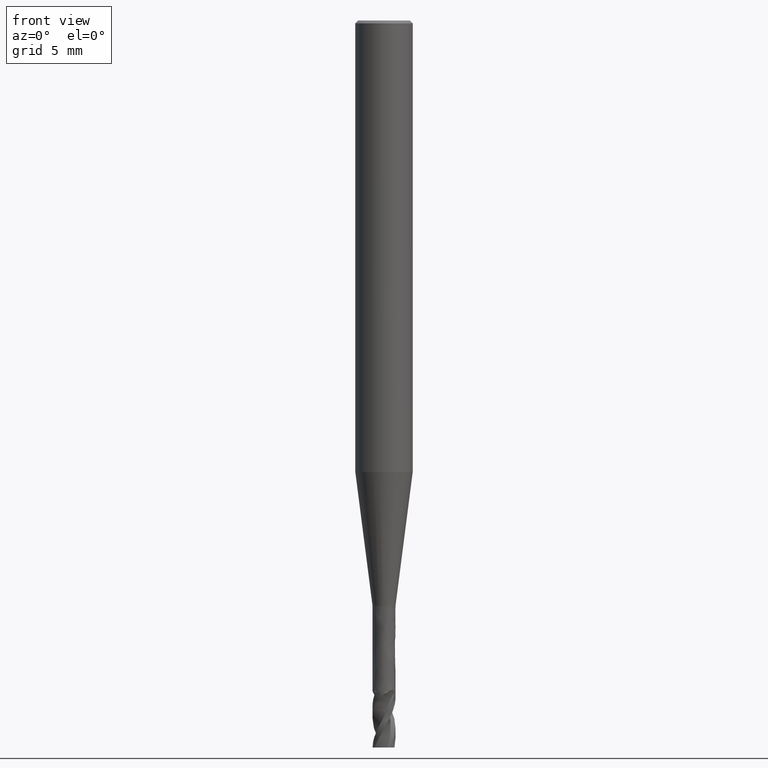
[diagram: clean part render]
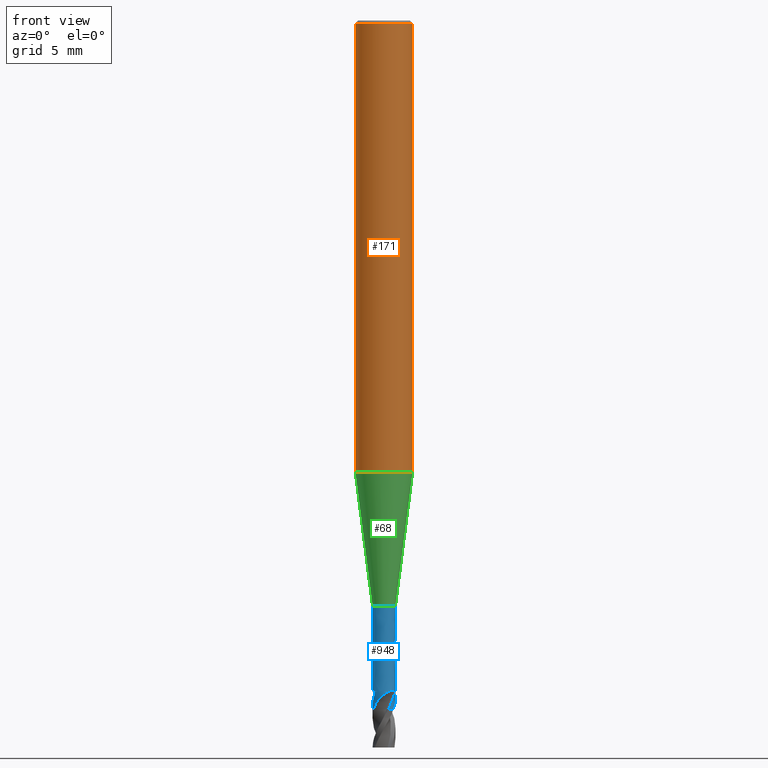
[diagram: same view with three faces highlighted in distinct colors, each labeled with its STEP entity id]
A machine part, front view with three faces highlighted in distinct colors.
Their STEP definitions:

[orange] entity #171 — the highlighted face is a freeform B-spline surface patch.
#73 = VERTEX_POINT('', #74);
#74 = CARTESIAN_POINT('', (-1.5, 1.53693173292993E-15, -23.6));
#82 = EDGE_CURVE('', #73, #73, #83, .T.);
#83 = CIRCLE('', #84, 1.5);
#84 = AXIS2_PLACEMENT_3D('', #85, #86, #87);
#85 = CARTESIAN_POINT('', (8.84858271770496E-32, 1.44508322299388E-15, -23.6));
#86 = DIRECTION('', (3.74939945665464E-33, 6.12323399573677E-17, -1.));
#87 = DIRECTION('', (-1., 6.12323399573677E-17, 0.));
#120 = VERTEX_POINT('', #121);
#121 = CARTESIAN_POINT('', (-1.5, 1.01033360929657E-16, -0.149999999999999));
#137 = EDGE_CURVE('', #120, #120, #138, .T.);
#138 = CIRCLE('', #139, 1.5);
#139 = AXIS2_PLACEMENT_3D('', #140, #141, #142);
#140 = CARTESIAN_POINT('', (5.62409918498176E-34, 9.18485099360502E-18, -0.149999999999999));
#141 = DIRECTION('', (3.74939945665464E-33, 6.12323399573677E-17, -1.));
#142 = DIRECTION('', (-1., 6.12323399573677E-17, 0.));
#171 = ADVANCED_FACE('', (#172), #183, .T.);
#172 = FACE_OUTER_BOUND('', #173, .T.);
#173 = EDGE_LOOP('', (#174, #180, #181, #182));
#174 = ORIENTED_EDGE('', *, *, #175, .T.);
#175 = EDGE_CURVE('', #73, #120, #176, .T.);
#176 = LINE('', #177, #178);
#177 = CARTESIAN_POINT('', (-1.5, 1.53693173292993E-15, -23.6));
#178 = VECTOR('', #179, 23.45);
#179 = DIRECTION('', (0., -1.43589837200027E-15, 23.45));
#180 = ORIENTED_EDGE('', *, *, #137, .T.);
#181 = ORIENTED_EDGE('', *, *, #175, .F.);
#182 = ORIENTED_EDGE('', *, *, #82, .F.);
#183 = (
   BOUNDED_SURFACE ()
   B_SPLINE_SURFACE (1, 2, ((#184, #185, #186, #187, #188, #189, #190, #191, #192), (#193, #194, #195, #196, #197, #198, #199, #200, #201)), .UNSPECIFIED., .F., .T., .U.)
   B_SPLINE_SURFACE_WITH_KNOTS ((2, 2), (3, 2, 2, 2, 3), (0., 1.), (0., 2.35619449019235, 4.71238898038469, 7.06858347057704, 9.42477796076938), .UNSPECIFIED.)
   GEOMETRIC_REPRESENTATION_ITEM ()
   RATIONAL_B_SPLINE_SURFACE (((1., 0.707106781186548, 1., 0.707106781186548, 1., 0.707106781186548, 1., 0.707106781186548, 1.), (1., 0.707106781186548, 1., 0.707106781186548, 1., 0.707106781186548, 1., 0.707106781186548, 1.)))
   REPRESENTATION_ITEM ('')
   SURFACE ()
);
#184 = CARTESIAN_POINT('', (-1.5, 1.53693173292993E-15, -23.6));
#185 = CARTESIAN_POINT('', (-1.5, 1.5, -23.6));
#186 = CARTESIAN_POINT('', (8.62816615085482E-32, 1.5, -23.6));
#187 = CARTESIAN_POINT('', (1.5, 1.5, -23.6));
#188 = CARTESIAN_POINT('', (1.5, 1.53693173292993E-15, -23.6));
#189 = CARTESIAN_POINT('', (1.5, -1.5, -23.6));
#190 = CARTESIAN_POINT('', (1.83697019872103E-16, -1.5, -23.6));
#191 = CARTESIAN_POINT('', (-1.5, -1.5, -23.6));
#192 = CARTESIAN_POINT('', (-1.5, 1.53693173292993E-15, -23.6));
#193 = CARTESIAN_POINT('', (-1.5, 1.01033360929657E-16, -0.149999999999999));
#194 = CARTESIAN_POINT('', (-1.5, 1.5, -0.149999999999995));
#195 = CARTESIAN_POINT('', (0., 1.5, -0.149999999999998));
#196 = CARTESIAN_POINT('', (1.5, 1.5, -0.149999999999995));
#197 = CARTESIAN_POINT('', (1.5, 1.01033360929656E-16, -0.149999999999999));
#198 = CARTESIAN_POINT('', (1.5, -1.5, -0.149999999999995));
#199 = CARTESIAN_POINT('', (1.83697019872103E-16, -1.5, -0.149999999999999));
#200 = CARTESIAN_POINT('', (-1.5, -1.5, -0.149999999999995));
#201 = CARTESIAN_POINT('', (-1.5, 1.01033360929657E-16, -0.149999999999999));

[blue] entity #948 — the highlighted face is a freeform B-spline surface patch.
#75 = VERTEX_POINT('', #76);
#76 = CARTESIAN_POINT('', (-0.6, 1.91044900666987E-15, -30.6));
#90 = EDGE_CURVE('', #75, #75, #91, .T.);
#91 = CIRCLE('', #92, 0.6);
#92 = AXIS2_PLACEMENT_3D('', #93, #94, #95);
#93 = CARTESIAN_POINT('', (1.14731623373632E-31, 1.87370960269545E-15, -30.6));
#94 = DIRECTION('', (3.74939945665464E-33, 6.12323399573677E-17, -1.));
#95 = DIRECTION('', (-1., 6.12323399573677E-17, 0.));
#207 = VERTEX_POINT('', #208);
#208 = CARTESIAN_POINT('', (0.490328690888254, -0.345800196618083, -36.));
#217 = VERTEX_POINT('', #218);
#218 = CARTESIAN_POINT('', (-0.0958757403506505, 0.592290336247534, -35.1336537629521));
#232 = EDGE_CURVE('', #233, #217, #235, .T.);
#233 = VERTEX_POINT('', #234);
#234 = CARTESIAN_POINT('', (0.124998551689292, 0.586835038213962, -35.));
#235 = B_SPLINE_CURVE_WITH_KNOTS('', 3, (#236, #237, #238, #239, #240, #241, #242, #243, #244, #245, #246, #247, #248, #249, #250, #251, #252, #253, #254, #255, #256, #257, #258, #259, #260, #261, #262, #263), .UNSPECIFIED., .F., .U., (4, 3, 3, 3, 3, 3, 3, 3, 3, 4), (0., 0.0388040698705433, 0.0775235768632878, 0.116156968144371, 0.127648843674734, 0.139156920262134, 0.178030401520452, 0.216793321110254, 0.25551003984678, 0.274551173210411), .UNSPECIFIED.);
#236 = CARTESIAN_POINT('', (0.124998551696068, 0.586835038212518, -35.));
#237 = CARTESIAN_POINT('', (0.112347720326072, 0.589529723253509, -35.0000366395628));
#238 = CARTESIAN_POINT('', (0.0995771799417001, 0.591818491646167, -35.0007884423705));
#239 = CARTESIAN_POINT('', (0.0868772630604819, 0.593676967014152, -35.0023898120331));
#240 = CARTESIAN_POINT('', (0.0742050221813653, 0.595531392342387, -35.0039876919477));
#241 = CARTESIAN_POINT('', (0.061534299047866, 0.596965999856449, -35.0064439285647));
#242 = CARTESIAN_POINT('', (0.0491312157792495, 0.597985053020605, -35.0098648726593));
#243 = CARTESIAN_POINT('', (0.0367557180979874, 0.599001839717668, -35.0132782082625));
#244 = CARTESIAN_POINT('', (0.0245641741152698, 0.599610833055968, -35.0176806335336));
#245 = CARTESIAN_POINT('', (0.0128814163229206, 0.599861708324109, -35.0230924622404));
#246 = CARTESIAN_POINT('', (0.00940626713334392, 0.599936333596691, -35.0247022629808));
#247 = CARTESIAN_POINT('', (0.00597085863881527, 0.59997985005236, -35.0264027346499));
#248 = CARTESIAN_POINT('', (0.00258391178644053, 0.599994436140771, -35.0281921668253));
#249 = CARTESIAN_POINT('', (-0.000807809927878144, 0.60000904279241, -35.0299841217127));
#250 = CARTESIAN_POINT('', (-0.00415347799589589, 0.599994651591358, -35.031866643586));
#251 = CARTESIAN_POINT('', (-0.00744462519594912, 0.599953812852035, -35.0338368654428));
#252 = CARTESIAN_POINT('', (-0.0185618912332396, 0.599815862434722, -35.0404921376635));
#253 = CARTESIAN_POINT('', (-0.0291093601344378, 0.599372412444301, -35.048199731836));
#254 = CARTESIAN_POINT('', (-0.0388174758852486, 0.598743019638559, -35.0567590329791));
#255 = CARTESIAN_POINT('', (-0.0484979803843575, 0.59811541691481, -35.0652939902614));
#256 = CARTESIAN_POINT('', (-0.0574226879143911, 0.597300600158555, -35.0747401459383));
#257 = CARTESIAN_POINT('', (-0.0654597229852692, 0.596418497924649, -35.0848188120835));
#258 = CARTESIAN_POINT('', (-0.0734871788530836, 0.595537447053135, -35.0948854656408));
#259 = CARTESIAN_POINT('', (-0.0806881584529217, 0.594584589704476, -35.1056470666327));
#260 = CARTESIAN_POINT('', (-0.0870553718727271, 0.59365087570735, -35.1168336918446));
#261 = CARTESIAN_POINT('', (-0.0901868087257899, 0.593191669108161, -35.1223353466722));
#262 = CARTESIAN_POINT('', (-0.0931249199475637, 0.592735619458448, -35.1279511597501));
#263 = CARTESIAN_POINT('', (-0.0958757403506505, 0.592290336247534, -35.1336537629521));
#265 = EDGE_CURVE('', #233, #266, #268, .T.);
#266 = VERTEX_POINT('', #267);
#267 = CARTESIAN_POINT('', (0.126953968628575, 0.586415117343898, -35.));
#268 = LINE('', #269, #270);
#269 = CARTESIAN_POINT('', (0.124998551689292, 0.586835038213962, -35.));
#270 = VECTOR('', #271, 0.00199999723588525);
#271 = DIRECTION('', (0.00195541693928261, -0.000419920870063928, 0.));
#273 = EDGE_CURVE('', #207, #266, #274, .T.);
#274 = B_SPLINE_CURVE_WITH_KNOTS('', 3, (#275, #276, #277, #278, #279, #280, #281, #282, #283, #284, #285, #286, #287, #288, #289, #290, #291, #292, #293, #294, #295, #296, #297, #298, #299, #300, #301, #302, #303, #304, #305, #306, #307, #308, #309, #310, #311, #312, #313, #314, #315, #316, #317, #318, #319, #320, #321, #322, #323, #324, #325, #326, #327, #328, #329, #330, #331, #332, #333, #334, #335, #336, #337, #338, #339, #340, #341), .UNSPECIFIED., .F., .U., (4, 3, 3, 3, 3, 3, 3, 3, 3, 3, 3, 3, 3, 3, 3, 3, 3, 3, 3, 3, 3, 3, 4), (2.30020898412155, 2.38695202491822, 2.42587327141153, 2.513466982803, 2.6010545954038, 2.68864339678738, 2.77623431383279, 2.86382763602324, 2.92221119329924, 2.98096504113997, 3.06943477713019, 3.15795926934783, 3.24652968413606, 3.33513289036472, 3.42375273847197, 3.51236618166987, 3.60094781893105, 3.65973055362885, 3.71846869689303, 3.7771397508331, 3.83571170612221, 3.86165300058631, 3.89890114130699), .UNSPECIFIED.);
#275 = CARTESIAN_POINT('', (0.490328690888254, -0.345800196618083, -36.));
#276 = CARTESIAN_POINT('', (0.498444851879673, -0.334291961205117, -35.974746477894));
#277 = CARTESIAN_POINT('', (0.506372033665174, -0.322196668996035, -35.9496873710882));
#278 = CARTESIAN_POINT('', (0.514078087811347, -0.309392500930821, -35.9249344022123));
#279 = CARTESIAN_POINT('', (0.51753576268831, -0.303647323256266, -35.9138278466407));
#280 = CARTESIAN_POINT('', (0.520949039636915, -0.297757972764949, -35.9027807546877));
#281 = CARTESIAN_POINT('', (0.524307442580226, -0.291721966356682, -35.8917986822493));
#282 = CARTESIAN_POINT('', (0.531865653189005, -0.278137709660954, -35.8670831201767));
#283 = CARTESIAN_POINT('', (0.539141497841583, -0.263814055921957, -35.8426729426558));
#284 = CARTESIAN_POINT('', (0.545973574469456, -0.248822941026434, -35.8185667859881));
#285 = CARTESIAN_POINT('', (0.552805175407871, -0.233832869900722, -35.7944623077332));
#286 = CARTESIAN_POINT('', (0.559199919135838, -0.218162237479127, -35.7706406437838));
#287 = CARTESIAN_POINT('', (0.565020718903063, -0.20187022368409, -35.7471228324007));
#288 = CARTESIAN_POINT('', (0.570841597673087, -0.185577988765713, -35.7236047018221));
#289 = CARTESIAN_POINT('', (0.576094670993778, -0.168647651972074, -35.7003688219764));
#290 = CARTESIAN_POINT('', (0.58065066420055, -0.151144983917625, -35.6774489277559));
#291 = CARTESIAN_POINT('', (0.585206767454962, -0.133641893095356, -35.6545284799174));
#292 = CARTESIAN_POINT('', (0.589069835816691, -0.115548503903559, -35.6318990594992));
#293 = CARTESIAN_POINT('', (0.592113504967882, -0.0969618339072078, -35.6095890848048));
#294 = CARTESIAN_POINT('', (0.5951572576947, -0.0783746535424457, -35.5872784975045));
#295 = CARTESIAN_POINT('', (0.597385423815004, -0.0592705741160304, -35.5652618007798));
#296 = CARTESIAN_POINT('', (0.598681176158362, -0.0397598957951394, -35.5435785245609));
#297 = CARTESIAN_POINT('', (0.59954483367542, -0.0267554477760934, -35.5291259753551));
#298 = CARTESIAN_POINT('', (0.599995108577792, -0.0135620702767653, -35.5148103313498));
#299 = CARTESIAN_POINT('', (0.599999960339906, -0.000218156161003333, -35.5006442562524));
#300 = CARTESIAN_POINT('', (0.600004842873728, 0.0132103900964821, -35.4863883345579));
#301 = CARTESIAN_POINT('', (0.599558633660723, 0.0268001541813085, -35.4722746433914));
#302 = CARTESIAN_POINT('', (0.598630929928056, 0.0405093783398455, -35.4583192243528));
#303 = CARTESIAN_POINT('', (0.597234022196521, 0.0611523061907051, -35.4373055838279));
#304 = CARTESIAN_POINT('', (0.594741996514665, 0.0820956528786408, -35.4166226713828));
#305 = CARTESIAN_POINT('', (0.59106309148802, 0.103171807587773, -35.3963269508965));
#306 = CARTESIAN_POINT('', (0.587381909491086, 0.124261006878843, -35.3760186688594));
#307 = CARTESIAN_POINT('', (0.582505570991688, 0.145521639557758, -35.356061106206));
#308 = CARTESIAN_POINT('', (0.57635736310326, 0.166769871371163, -35.3365305165708));
#309 = CARTESIAN_POINT('', (0.57020596579794, 0.188029125822496, -35.3169897953341));
#310 = CARTESIAN_POINT('', (0.562768300766994, 0.209319344518514, -35.2978353696723));
#311 = CARTESIAN_POINT('', (0.553987512817619, 0.230429676131677, -35.2791568516033));
#312 = CARTESIAN_POINT('', (0.545203473955558, 0.251547823426671, -35.2604714181832));
#313 = CARTESIAN_POINT('', (0.535054088629139, 0.272536263404244, -35.2422176632189));
#314 = CARTESIAN_POINT('', (0.523503018752897, 0.293163076386855, -35.2245148872531));
#315 = CARTESIAN_POINT('', (0.511949779299382, 0.31379376359628, -35.2068087862672));
#316 = CARTESIAN_POINT('', (0.498961975692826, 0.334118941062348, -35.1896039324944));
#317 = CARTESIAN_POINT('', (0.484532898124182, 0.353875501603859, -35.1730483097391));
#318 = CARTESIAN_POINT('', (0.470104863402436, 0.373630634260059, -35.1564938835246));
#319 = CARTESIAN_POINT('', (0.454187966102664, 0.392881618879135, -35.1405336499033));
#320 = CARTESIAN_POINT('', (0.43680824586954, 0.411337521191998, -35.1253742477409));
#321 = CARTESIAN_POINT('', (0.419434763722445, 0.429786799145847, -35.1102202867278));
#322 = CARTESIAN_POINT('', (0.400529207142576, 0.447514429391241, -35.0958045685062));
#323 = CARTESIAN_POINT('', (0.380165660405124, 0.464191846814157, -35.0824237618902));
#324 = CARTESIAN_POINT('', (0.366652419936961, 0.475258973524914, -35.0735442646303));
#325 = CARTESIAN_POINT('', (0.352462664189037, 0.485892709234798, -35.0650981054081));
#326 = CARTESIAN_POINT('', (0.337637066469528, 0.495985091858469, -35.0572063439819));
#327 = CARTESIAN_POINT('', (0.322822715158679, 0.50606981859794, -35.0493205690916));
#328 = CARTESIAN_POINT('', (0.307333477983282, 0.515640514458802, -35.0419667162588));
#329 = CARTESIAN_POINT('', (0.291235817855269, 0.524577638103431, -35.0353074878384));
#330 = CARTESIAN_POINT('', (0.2751565440956, 0.533504553975878, -35.0286558654319));
#331 = CARTESIAN_POINT('', (0.258415201125441, 0.541828543155526, -35.0226741387604));
#332 = CARTESIAN_POINT('', (0.241123670348406, 0.549417305513501, -35.0175858579573));
#333 = CARTESIAN_POINT('', (0.223861345921998, 0.556993250032668, -35.0125061715414));
#334 = CARTESIAN_POINT('', (0.2059717338831, 0.563868437025403, -35.0082937812864));
#335 = CARTESIAN_POINT('', (0.187652752426766, 0.569900381212946, -35.0052579022104));
#336 = CARTESIAN_POINT('', (0.179539345764902, 0.572571906170371, -35.0039133230055));
#337 = CARTESIAN_POINT('', (0.171328775103828, 0.575083034041252, -35.002798000829));
#338 = CARTESIAN_POINT('', (0.163047634901209, 0.577421396168602, -35.0019453074474));
#339 = CARTESIAN_POINT('', (0.1511570534184, 0.580778963451761, -35.0007209567077));
#340 = CARTESIAN_POINT('', (0.139088849590595, 0.583788017101569, -35.0000350568162));
#341 = CARTESIAN_POINT('', (0.126953968621953, 0.586415117345331, -35.));
#370 = VERTEX_POINT('', #371);
#371 = CARTESIAN_POINT('', (0.370189930607976, 0.472185784703928, -36.));
#377 = EDGE_CURVE('', #217, #370, #378, .T.);
#378 = B_SPLINE_CURVE_WITH_KNOTS('', 3, (#379, #380, #381, #382, #383, #384, #385, #386, #387, #388, #389, #390, #391, #392, #393, #394, #395, #396, #397, #398, #399, #400, #401, #402, #403, #404, #405, #406, #407, #408, #409, #410, #411, #412), .UNSPECIFIED., .F., .U., (4, 3, 3, 3, 3, 3, 3, 3, 3, 3, 3, 4), (0., 0.087427344844775, 0.174841659366953, 0.213749101737953, 0.301473697095007, 0.389190618277306, 0.476900304847303, 0.608570303749704, 0.740237875023084, 0.871899451927085, 0.930319938604545, 0.997824811766966), .UNSPECIFIED.);
#379 = CARTESIAN_POINT('', (-0.0958757403506505, 0.592290336247534, -35.1336537629521));
#380 = CARTESIAN_POINT('', (-0.0816006682633882, 0.594601083226113, -35.1589552462515));
#381 = CARTESIAN_POINT('', (-0.067236985260783, 0.596396178409782, -35.1842592302945));
#382 = CARTESIAN_POINT('', (-0.0528289360962906, 0.597669727785294, -35.2095588050559));
#383 = CARTESIAN_POINT('', (-0.0384230343323505, 0.598943087348805, -35.234854609125));
#384 = CARTESIAN_POINT('', (-0.0239707195768895, 0.599695342208929, -35.2601556093619));
#385 = CARTESIAN_POINT('', (-0.00951228575736046, 0.599924592277797, -35.285452452833));
#386 = CARTESIAN_POINT('', (-0.00307694752147548, 0.600026629728891, -35.2967118842534));
#387 = CARTESIAN_POINT('', (0.00336032395722884, 0.600025110841238, -35.3079716253966));
#388 = CARTESIAN_POINT('', (0.00979572413090624, 0.599920031161449, -35.3192309934351));
#389 = CARTESIAN_POINT('', (0.0243056184285934, 0.599683108047824, -35.3446174862232));
#390 = CARTESIAN_POINT('', (0.0388083110241686, 0.598919448030273, -35.3700086335529));
#391 = CARTESIAN_POINT('', (0.0532627467476189, 0.597631223924004, -35.3953951840815));
#392 = CARTESIAN_POINT('', (0.0677159179925582, 0.596343112511979, -35.4207795137868));
#393 = CARTESIAN_POINT('', (0.0821258423215846, 0.594529981652464, -35.4461672781028));
#394 = CARTESIAN_POINT('', (0.0964475923128512, 0.592197485588263, -35.4715516142953));
#395 = CARTESIAN_POINT('', (0.11076816109179, 0.58986518190091, -35.4969338568686));
#396 = CARTESIAN_POINT('', (0.12500639457099, 0.587012712666572, -35.5223202078086));
#397 = CARTESIAN_POINT('', (0.139120403676939, 0.583648450079992, -35.5477023482404));
#398 = CARTESIAN_POINT('', (0.160308389134004, 0.578598010745348, -35.5858060803762));
#399 = CARTESIAN_POINT('', (0.181226036483727, 0.572391146724426, -35.6239252869249));
#400 = CARTESIAN_POINT('', (0.201740835873222, 0.565066929789352, -35.6620281860295));
#401 = CARTESIAN_POINT('', (0.222255257026803, 0.557742847892494, -35.7001303826226));
#402 = CARTESIAN_POINT('', (0.242378993447972, 0.549296568512403, -35.738245627646));
#403 = CARTESIAN_POINT('', (0.261971805338107, 0.539787711242017, -35.7763502781727));
#404 = CARTESIAN_POINT('', (0.281563725235244, 0.530279286877033, -35.8144531939264));
#405 = CARTESIAN_POINT('', (0.300640957593856, 0.519701495844701, -35.8525723372381));
#406 = CARTESIAN_POINT('', (0.319090631712257, 0.50811531048914, -35.8906703093879));
#407 = CARTESIAN_POINT('', (0.327277066710096, 0.502974322486993, -35.9075750292519));
#408 = CARTESIAN_POINT('', (0.335340569077229, 0.497634493218622, -35.9244804227193));
#409 = CARTESIAN_POINT('', (0.343266465446137, 0.49210581555202, -35.9413869575299));
#410 = CARTESIAN_POINT('', (0.352424838809843, 0.485717428431927, -35.9609224587369));
#411 = CARTESIAN_POINT('', (0.361401323577231, 0.479075983291529, -35.9804651938848));
#412 = CARTESIAN_POINT('', (0.370189930607976, 0.472185784703928, -36.));
#442 = VERTEX_POINT('', #443);
#443 = CARTESIAN_POINT('', (0.0543074122689383, 0.597537199655933, -36.));
#452 = VERTEX_POINT('', #453);
#453 = CARTESIAN_POINT('', (-0.465000607431065, -0.379175994874069, -35.1336537629521));
#467 = EDGE_CURVE('', #468, #452, #470, .T.);
#468 = VERTEX_POINT('', #469);
#469 = CARTESIAN_POINT('', (-0.570713326768747, -0.185165597907789, -35.));
#470 = B_SPLINE_CURVE_WITH_KNOTS('', 3, (#471, #472, #473, #474, #475, #476, #477, #478, #479, #480, #481, #482, #483, #484, #485, #486, #487, #488, #489, #490, #491, #492), .UNSPECIFIED., .F., .U., (4, 3, 3, 3, 3, 3, 3, 4), (0., 0.0391433481706143, 0.0781944405581312, 0.117132500966041, 0.155950875094842, 0.194671707764165, 0.233345950460599, 0.274509939951007), .UNSPECIFIED.);
#471 = CARTESIAN_POINT('', (-0.570713326770884, -0.185165597901201, -35.));
#472 = CARTESIAN_POINT('', (-0.566686675443669, -0.197576453917379, -35.000036959916));
#473 = CARTESIAN_POINT('', (-0.562241221924275, -0.20988662347355, -35.0008016909343));
#474 = CARTESIAN_POINT('', (-0.557453233763272, -0.221914154949318, -35.0024321172498));
#475 = CARTESIAN_POINT('', (-0.552676530267938, -0.233913339096947, -35.0040587008624));
#476 = CARTESIAN_POINT('', (-0.547531144385319, -0.24569686488974, -35.006559907783));
#477 = CARTESIAN_POINT('', (-0.542158334440583, -0.257029843396855, -35.0100441009743));
#478 = CARTESIAN_POINT('', (-0.536801075900609, -0.268330019006094, -35.0135182092941));
#479 = CARTESIAN_POINT('', (-0.531180582748919, -0.279258538545026, -35.0179993767583));
#480 = CARTESIAN_POINT('', (-0.525508525314057, -0.289552741002816, -35.0235058072441));
#481 = CARTESIAN_POINT('', (-0.519853902426323, -0.299815301545841, -35.0289953122803));
#482 = CARTESIAN_POINT('', (-0.514105100174438, -0.30952723617929, -35.0355516374083));
#483 = CARTESIAN_POINT('', (-0.508508945943972, -0.318462952154484, -35.043052678155));
#484 = CARTESIAN_POINT('', (-0.502926853535088, -0.327376214773573, -35.0505348705476));
#485 = CARTESIAN_POINT('', (-0.497453333215358, -0.335591126463263, -35.0590174656571));
#486 = CARTESIAN_POINT('', (-0.492301472591189, -0.342985801578644, -35.0682568553137));
#487 = CARTESIAN_POINT('', (-0.487155810827692, -0.350371579217153, -35.077485127882));
#488 = CARTESIAN_POINT('', (-0.48229263626454, -0.356998532919709, -35.0875332511615));
#489 = CARTESIAN_POINT('', (-0.477842809441015, -0.362858442736994, -35.0981185739756));
#490 = CARTESIAN_POINT('', (-0.473106514381911, -0.369095598252277, -35.1093853522417));
#491 = CARTESIAN_POINT('', (-0.46880769695015, -0.374507189456925, -35.121325615578));
#492 = CARTESIAN_POINT('', (-0.465000607431065, -0.379175994874069, -35.1336537629521));
#494 = EDGE_CURVE('', #468, #495, #497, .T.);
#495 = VERTEX_POINT('', #496);
#496 = CARTESIAN_POINT('', (-0.571327373097333, -0.183262196728348, -35.));
#497 = LINE('', #498, #499);
#498 = CARTESIAN_POINT('', (-0.570713326768747, -0.185165597907789, -35.));
#499 = VECTOR('', #500, 0.00199999723588494);
#500 = DIRECTION('', (-0.000614046328586526, 0.00190340117944085, 0.));
#502 = EDGE_CURVE('', #503, #495, #505, .T.);
#503 = VERTEX_POINT('', #504);
#504 = CARTESIAN_POINT('', (-0.6, 2.1822610249017E-15, -35.0390271288191));
#505 = B_SPLINE_CURVE_WITH_KNOTS('', 3, (#506, #507, #508, #509, #510, #511, #512, #513, #514, #515, #516, #517, #518), .UNSPECIFIED., .F., .U., (4, 3, 3, 3, 4), (0., 0.0593283939609799, 0.11860776627626, 0.157865703053861, 0.19116284222664), .UNSPECIFIED.);
#506 = CARTESIAN_POINT('', (-0.6, 2.15450544928607E-15, -35.0390271288191));
#507 = CARTESIAN_POINT('', (-0.6, -0.0185054070791206, -35.0320525120673));
#508 = CARTESIAN_POINT('', (-0.599141104598168, -0.0373009885721476, -35.0257327203925));
#509 = CARTESIAN_POINT('', (-0.597359481016837, -0.0562285553726417, -35.0202858495086));
#510 = CARTESIAN_POINT('', (-0.595579329548843, -0.0751404827733189, -35.014843479245));
#511 = CARTESIAN_POINT('', (-0.592867890149742, -0.0942669198222212, -35.010248346099));
#512 = CARTESIAN_POINT('', (-0.589191308461986, -0.113373727260123, -35.0068042224125));
#513 = CARTESIAN_POINT('', (-0.58675648154297, -0.126027266073414, -35.0045233414811));
#514 = CARTESIAN_POINT('', (-0.583891643486849, -0.138709866109588, -35.0027417117006));
#515 = CARTESIAN_POINT('', (-0.580604485673354, -0.151322276007134, -35.0015735702135));
#516 = CARTESIAN_POINT('', (-0.577816439225093, -0.162019658552779, -35.0005827955356));
#517 = CARTESIAN_POINT('', (-0.574717418954231, -0.172693590498572, -35.0000313382538));
#518 = CARTESIAN_POINT('', (-0.571327373095271, -0.183262196734776, -35.));
#520 = EDGE_CURVE('', #442, #503, #521, .T.);
#521 = B_SPLINE_CURVE_WITH_KNOTS('', 3, (#522, #523, #524, #525, #526, #527, #528, #529, #530, #531, #532, #533, #534, #535, #536, #537, #538, #539, #540, #541, #542, #543, #544, #545, #546, #547, #548, #549, #550, #551, #552, #553, #554, #555, #556, #557, #558, #559, #560, #561, #562, #563, #564, #565, #566, #567, #568, #569, #570, #571, #572, #573, #574, #575, #576), .UNSPECIFIED., .F., .U., (4, 3, 3, 3, 3, 3, 3, 3, 3, 3, 3, 3, 3, 3, 3, 3, 3, 3, 4), (2.30018021809366, 2.33214528044806, 2.39048568675276, 2.40777910517182, 2.49563187743093, 2.58352085040529, 2.67145684085617, 2.75944306365838, 2.84748241784141, 2.93557320020795, 3.02371011922157, 3.11188322344589, 3.20008334586567, 3.28829401926274, 3.37649883183458, 3.46466915093855, 3.55277436060544, 3.64077035587392, 3.70767059028253), .UNSPECIFIED.);
#522 = CARTESIAN_POINT('', (0.0543074122689383, 0.597537199655933, -36.));
#523 = CARTESIAN_POINT('', (0.0491394325734026, 0.598006893599816, -35.9906940426935));
#524 = CARTESIAN_POINT('', (0.0439161821766765, 0.598414073650817, -35.9814142155992));
#525 = CARTESIAN_POINT('', (0.0386323979047502, 0.598754989818377, -35.9721678721133));
#526 = CARTESIAN_POINT('', (0.0289888027247072, 0.599377206271792, -35.9552920897413));
#527 = CARTESIAN_POINT('', (0.0191388588044773, 0.599779352461476, -35.9385221899753));
#528 = CARTESIAN_POINT('', (0.00906193530922956, 0.599931563870792, -35.9218905768083));
#529 = CARTESIAN_POINT('', (0.00607490684271669, 0.599976682781615, -35.9169605897942));
#530 = CARTESIAN_POINT('', (0.00306789073797061, 0.599999793218224, -35.9120424013062));
#531 = CARTESIAN_POINT('', (4.07112838935212E-5, 0.599999998618828, -35.9071367585098));
#532 = CARTESIAN_POINT('', (-0.0153377466196942, 0.600001042080107, -35.8822154671299));
#533 = CARTESIAN_POINT('', (-0.0312485962518507, 0.599408605169055, -35.8576081551785));
#534 = CARTESIAN_POINT('', (-0.0475419516331205, 0.598113503304278, -35.8333096569903));
#535 = CARTESIAN_POINT('', (-0.0638420208733087, 0.596817867778324, -35.8090011463347));
#536 = CARTESIAN_POINT('', (-0.0805394256632855, 0.594818624201895, -35.7849802786496));
#537 = CARTESIAN_POINT('', (-0.0975094708924197, 0.592023566326783, -35.7612636213105));
#538 = CARTESIAN_POINT('', (-0.114488594492549, 0.589227013195059, -35.7375342764028));
#539 = CARTESIAN_POINT('', (-0.131758714862514, 0.585631137012251, -35.7140884359264));
#540 = CARTESIAN_POINT('', (-0.149198377741831, 0.581153890186763, -35.6909582483587));
#541 = CARTESIAN_POINT('', (-0.166648002813742, 0.576674085789178, -35.6678148479563));
#542 = CARTESIAN_POINT('', (-0.184287753673124, 0.571306096736756, -35.6449650174717));
#543 = CARTESIAN_POINT('', (-0.201970375936608, 0.564984926563557, -35.6224363086249));
#544 = CARTESIAN_POINT('', (-0.219663676032458, 0.558659939287076, -35.5998939955867));
#545 = CARTESIAN_POINT('', (-0.237420812309, 0.551373197656715, -35.5776464505871));
#546 = CARTESIAN_POINT('', (-0.255089167579683, 0.543074135439635, -35.5557336917971));
#547 = CARTESIAN_POINT('', (-0.272767843819046, 0.534770225325854, -35.5338081326704));
#548 = CARTESIAN_POINT('', (-0.290379383870626, 0.525442184750277, -35.5121871937711));
#549 = CARTESIAN_POINT('', (-0.307754479032667, 0.51506036601095, -35.4909140988494));
#550 = CARTESIAN_POINT('', (-0.325138674223245, 0.504673109900149, -35.4696298623617));
#551 = CARTESIAN_POINT('', (-0.342313325020747, 0.493214558703279, -35.44866327696));
#552 = CARTESIAN_POINT('', (-0.359098994367886, 0.480674434772617, -35.4280693300053));
#553 = CARTESIAN_POINT('', (-0.37589155518558, 0.468129162408906, -35.4074669280658));
#554 = CARTESIAN_POINT('', (-0.392321436331595, 0.45448112762819, -35.3872006216634));
#555 = CARTESIAN_POINT('', (-0.408197042643386, 0.439744442122008, -35.3673353719117));
#556 = CARTESIAN_POINT('', (-0.424077513593189, 0.425003240968417, -35.3474640350067));
#557 = CARTESIAN_POINT('', (-0.43943456320142, 0.409143332306254, -35.3279571696663));
#558 = CARTESIAN_POINT('', (-0.454065790802283, 0.392204356965982, -35.3088951474036));
#559 = CARTESIAN_POINT('', (-0.468698768669992, 0.375263355293556, -35.2898308448384));
#560 = CARTESIAN_POINT('', (-0.482636888821692, 0.357206452126708, -35.2711683402486));
#561 = CARTESIAN_POINT('', (-0.495668502893423, 0.338101664058895, -35.2530092290697));
#562 = CARTESIAN_POINT('', (-0.508699251128747, 0.318998145336612, -35.2348513244043));
#563 = CARTESIAN_POINT('', (-0.520856743078705, 0.298797397139031, -35.2171519913209));
#564 = CARTESIAN_POINT('', (-0.5319186134511, 0.277601492546888, -35.200039920103));
#565 = CARTESIAN_POINT('', (-0.542976157956697, 0.25641387684775, -35.1829345407499));
#566 = CARTESIAN_POINT('', (-0.552970554133121, 0.234169981705468, -35.1663633672283));
#567 = CARTESIAN_POINT('', (-0.561670878363997, 0.211011431912627, -35.1504962855151));
#568 = CARTESIAN_POINT('', (-0.570364777834035, 0.187869983567938, -35.1346409208602));
#569 = CARTESIAN_POINT('', (-0.577796474776362, 0.163733149288315, -35.1194316042131));
#570 = CARTESIAN_POINT('', (-0.583727005166585, 0.138790429926743, -35.1051070564727));
#571 = CARTESIAN_POINT('', (-0.589650184126499, 0.113878629328091, -35.0908002653084));
#572 = CARTESIAN_POINT('', (-0.59410025291033, 0.0880534092181124, -35.077311423244));
#573 = CARTESIAN_POINT('', (-0.59683196248973, 0.0615760387704317, -35.064988568525));
#574 = CARTESIAN_POINT('', (-0.59890878440237, 0.0414462330438318, -35.0556199391144));
#575 = CARTESIAN_POINT('', (-0.6, 0.0208671765535125, -35.0468918874019));
#576 = CARTESIAN_POINT('', (-0.6, 2.15450544928607E-15, -35.0390271288191));
#613 = VERTEX_POINT('', #614);
#614 = CARTESIAN_POINT('', (-0.6, 2.23202215885758E-15, -35.851688117939));
#627 = EDGE_CURVE('', #452, #613, #628, .T.);
#628 = B_SPLINE_CURVE_WITH_KNOTS('', 3, (#629, #630, #631, #632, #633, #634, #635, #636, #637, #638, #639, #640, #641, #642, #643, #644, #645, #646, #647, #648, #649, #650, #651, #652, #653, #654, #655, #656), .UNSPECIFIED., .F., .U., (4, 3, 3, 3, 3, 3, 3, 3, 3, 4), (0., 0.087531907772177, 0.175052125147683, 0.262565942611802, 0.350073803021446, 0.437575250567772, 0.568776147493524, 0.656267491587521, 0.787462373663, 0.827007168595617), .UNSPECIFIED.);
#629 = CARTESIAN_POINT('', (-0.465000607431065, -0.379175994874069, -35.1336537629521));
#630 = CARTESIAN_POINT('', (-0.474150238928506, -0.36795538950454, -35.1589855067743));
#631 = CARTESIAN_POINT('', (-0.482896647834603, -0.356399413626223, -35.1843197609447));
#632 = CARTESIAN_POINT('', (-0.491212507541671, -0.344543571170067, -35.2096495944116));
#633 = CARTESIAN_POINT('', (-0.499527256617187, -0.332689312130801, -35.2349760449315));
#634 = CARTESIAN_POINT('', (-0.507412856260359, -0.320533616274935, -35.2603077125579));
#635 = CARTESIAN_POINT('', (-0.514847446215982, -0.308110543676909, -35.2856352024634));
#636 = CARTESIAN_POINT('', (-0.522281492517598, -0.295688379515427, -35.3109608402974));
#637 = CARTESIAN_POINT('', (-0.529267064289605, -0.282994593728781, -35.3362903071068));
#638 = CARTESIAN_POINT('', (-0.535783063858939, -0.270067599837386, -35.361616138132));
#639 = CARTESIAN_POINT('', (-0.542298619885008, -0.25714148588483, -35.386940245231));
#640 = CARTESIAN_POINT('', (-0.54834741364995, -0.243976810997753, -35.4122680908907));
#641 = CARTESIAN_POINT('', (-0.553911528543471, -0.230612268855399, -35.4375915371685));
#642 = CARTESIAN_POINT('', (-0.559475235680384, -0.217248706110572, -35.462913127661));
#643 = CARTESIAN_POINT('', (-0.564555548137928, -0.203682486316451, -35.4882393903911));
#644 = CARTESIAN_POINT('', (-0.569138105751259, -0.189952142872538, -35.5135613260605));
#645 = CARTESIAN_POINT('', (-0.576009256868669, -0.169364673459688, -35.5515293913312));
#646 = CARTESIAN_POINT('', (-0.581763873401892, -0.148397591993306, -35.589511906185));
#647 = CARTESIAN_POINT('', (-0.586364588404626, -0.127187143474266, -35.6274800624477));
#648 = CARTESIAN_POINT('', (-0.589432576115187, -0.113042951679468, -35.6527991349695));
#649 = CARTESIAN_POINT('', (-0.591989277096041, -0.0987836248688929, -35.6781212555379));
#650 = CARTESIAN_POINT('', (-0.594026631094831, -0.0844533098826556, -35.7034395770574));
#651 = CARTESIAN_POINT('', (-0.59708168094445, -0.0629647385937746, -35.741404866544));
#652 = CARTESIAN_POINT('', (-0.598969627913765, -0.0413061987817239, -35.7793860783124));
#653 = CARTESIAN_POINT('', (-0.59967914424062, -0.0196194791794721, -35.8173549867889));
#654 = CARTESIAN_POINT('', (-0.599893006833451, -0.01308266260656, -35.8287995848995));
#655 = CARTESIAN_POINT('', (-0.6, -0.0065417094815849, -35.8402443173864));
#656 = CARTESIAN_POINT('', (-0.6, 2.2609839093901E-15, -35.851688117939));
#686 = VERTEX_POINT('', #687);
#687 = CARTESIAN_POINT('', (-0.544636100524171, -0.251737002479015, -36.));
#696 = VERTEX_POINT('', #697);
#697 = CARTESIAN_POINT('', (0.560876347781715, -0.21311434137346, -35.1336537629521));
#711 = EDGE_CURVE('', #712, #696, #714, .T.);
#712 = VERTEX_POINT('', #713);
#713 = CARTESIAN_POINT('', (0.445714775079455, -0.401669440306167, -35.));
#714 = B_SPLINE_CURVE_WITH_KNOTS('', 3, (#715, #716, #717, #718, #719, #720, #721, #722, #723, #724, #725, #726, #727, #728, #729, #730, #731, #732, #733, #734, #735, #736), .UNSPECIFIED., .F., .U., (4, 3, 3, 3, 3, 3, 3, 4), (0., 0.0389734144798024, 0.0778599133700016, 0.116648218224778, 0.15534281712054, 0.193973456090439, 0.232590356393934, 0.274512340769602), .UNSPECIFIED.);
#715 = CARTESIAN_POINT('', (0.445714775076202, -0.401669440309779, -35.));
#716 = CARTESIAN_POINT('', (0.454411645507153, -0.392018908656166, -35.0000367994614));
#717 = CARTESIAN_POINT('', (0.462814385979184, -0.382058899740368, -35.0007950411824));
#718 = CARTESIAN_POINT('', (0.470805147600292, -0.371944233713962, -35.002410878606));
#719 = CARTESIAN_POINT('', (0.478778088823393, -0.361852124658072, -35.00402311251));
#720 = CARTESIAN_POINT('', (0.486383298403989, -0.351549973770684, -35.0065018667511));
#721 = CARTESIAN_POINT('', (0.493489691543057, -0.341273972550995, -35.0099545078547));
#722 = CARTESIAN_POINT('', (0.500578140011363, -0.331023919721019, -35.01339843054));
#723 = CARTESIAN_POINT('', (0.507217231486223, -0.320730484063669, -35.0178405429938));
#724 = CARTESIAN_POINT('', (0.513286427211184, -0.310704109468762, -35.0233001184262));
#725 = CARTESIAN_POINT('', (0.519340960789708, -0.300701956892588, -35.0287465044513));
#726 = CARTESIAN_POINT('', (0.524875560321603, -0.290889244387248, -35.0352526238345));
#727 = CARTESIAN_POINT('', (0.529818029090922, -0.281589872066112, -35.0426995850028));
#728 = CARTESIAN_POINT('', (0.534752328246261, -0.272305871067621, -35.0501342367766));
#729 = CARTESIAN_POINT('', (0.539138653849682, -0.263459446479729, -35.0585665122715));
#730 = CARTESIAN_POINT('', (0.542976788015608, -0.255296313479556, -35.0677559635847));
#731 = CARTESIAN_POINT('', (0.546813557180946, -0.247136083629942, -35.0769421467457));
#732 = CARTESIAN_POINT('', (0.550134834301055, -0.239595737763539, -35.0869495534914));
#733 = CARTESIAN_POINT('', (0.552997919783512, -0.232794546145539, -35.0974967163322));
#734 = CARTESIAN_POINT('', (0.556106046637778, -0.22541126456403, -35.1089465735797));
#735 = CARTESIAN_POINT('', (0.558697186854769, -0.218849477798615, -35.121098604718));
#736 = CARTESIAN_POINT('', (0.560876347781715, -0.21311434137346, -35.1336537629521));
#738 = EDGE_CURVE('', #712, #739, #741, .T.);
#739 = VERTEX_POINT('', #740);
#740 = CARTESIAN_POINT('', (0.444373404468759, -0.403152920615544, -35.));
#741 = LINE('', #742, #743);
#742 = CARTESIAN_POINT('', (0.445714775079455, -0.401669440306167, -35.));
#743 = VECTOR('', #744, 0.00199999723588548);
#744 = DIRECTION('', (-0.00134137061069611, -0.00148348030937734, 0.));
#746 = EDGE_CURVE('', #686, #739, #747, .T.);
#747 = B_SPLINE_CURVE_WITH_KNOTS('', 3, (#748, #749, #750, #751, #752, #753, #754, #755, #756, #757, #758, #759, #760, #761, #762, #763, #764, #765, #766, #767, #768, #769, #770, #771, #772, #773, #774, #775, #776, #777, #778, #779, #780, #781, #782, #783, #784, #785, #786, #787, #788, #789, #790, #791, #792, #793, #794, #795, #796, #797, #798, #799, #800, #801, #802, #803, #804, #805, #806, #807, #808, #809, #810, #811, #812, #813, #814), .UNSPECIFIED., .F., .U., (4, 3, 3, 3, 3, 3, 3, 3, 3, 3, 3, 3, 3, 3, 3, 3, 3, 3, 3, 3, 3, 3, 4), (0.534760769427953, 0.535746145390134, 0.623441639108337, 0.66238582307695, 0.75010613049316, 0.837844718513659, 0.925608670149234, 1.01340072177949, 1.10122342233288, 1.18907095602389, 1.27693703238561, 1.36480728856537, 1.45266869004079, 1.54049834297198, 1.57945593664899, 1.66855570673984, 1.7576812321187, 1.84681336726443, 1.90586052062367, 1.96487943104401, 2.02384897534549, 2.08273706459134, 2.13340814867946), .UNSPECIFIED.);
#748 = CARTESIAN_POINT('', (-0.544636100524171, -0.251737002479015, -36.));
#749 = CARTESIAN_POINT('', (-0.544568983955241, -0.251882209470868, -35.9997131275622));
#750 = CARTESIAN_POINT('', (-0.544501789951642, -0.252027431758799, -35.9994262813364));
#751 = CARTESIAN_POINT('', (-0.544434518328285, -0.252172669519614, -35.9991394615167));
#752 = CARTESIAN_POINT('', (-0.538447546400823, -0.265098392928823, -35.9736133611663));
#753 = CARTESIAN_POINT('', (-0.531842745131054, -0.278158633888577, -35.9482871787713));
#754 = CARTESIAN_POINT('', (-0.524494756544802, -0.291385055136682, -35.9232758053122));
#755 = CARTESIAN_POINT('', (-0.521231630845074, -0.297258699955739, -35.9121686493113));
#756 = CARTESIAN_POINT('', (-0.517820618447699, -0.303166149646539, -35.9011215243521));
#757 = CARTESIAN_POINT('', (-0.514254908856178, -0.30909850973005, -35.8901392920577));
#758 = CARTESIAN_POINT('', (-0.506223282316583, -0.32246092735443, -35.8654022274999));
#759 = CARTESIAN_POINT('', (-0.49740726189433, -0.335944775304656, -35.8409706812977));
#760 = CARTESIAN_POINT('', (-0.487788422795746, -0.349374375972877, -35.816843780277));
#761 = CARTESIAN_POINT('', (-0.478167579164842, -0.362806775322758, -35.7927118512947));
#762 = CARTESIAN_POINT('', (-0.467735479632301, -0.376197522266809, -35.7688634193341));
#763 = CARTESIAN_POINT('', (-0.456474787118974, -0.389397956754636, -35.7453201546003));
#764 = CARTESIAN_POINT('', (-0.445210839346168, -0.402602207245737, -35.721770083941));
#765 = CARTESIAN_POINT('', (-0.433106321383103, -0.415629759687381, -35.6985035281268));
#766 = CARTESIAN_POINT('', (-0.420153909682209, -0.428334789830049, -35.6755546323205));
#767 = CARTESIAN_POINT('', (-0.407197350917594, -0.441043887830565, -35.6525983888067));
#768 = CARTESIAN_POINT('', (-0.393379086534336, -0.453442474005419, -35.6299343517382));
#769 = CARTESIAN_POINT('', (-0.378720432433195, -0.465371716005186, -35.6075915732958));
#770 = CARTESIAN_POINT('', (-0.364056660876038, -0.477305122600886, -35.5852409948067));
#771 = CARTESIAN_POINT('', (-0.348533025132121, -0.488784188639132, -35.5631861846573));
#772 = CARTESIAN_POINT('', (-0.332187893941405, -0.499651081374564, -35.541466882719));
#773 = CARTESIAN_POINT('', (-0.315838140928659, -0.510521046880943, -35.5197414393342));
#774 = CARTESIAN_POINT('', (-0.298645931214421, -0.520791811444659, -35.4983203509593));
#775 = CARTESIAN_POINT('', (-0.280673236699344, -0.530304190253775, -35.4772499365065));
#776 = CARTESIAN_POINT('', (-0.262696748546103, -0.539818576915594, -35.4561750745553));
#777 = CARTESIAN_POINT('', (-0.243910161013387, -0.548589395260769, -35.4354207376969));
#778 = CARTESIAN_POINT('', (-0.224401275080535, -0.556456707877826, -35.4150409376984));
#779 = CARTESIAN_POINT('', (-0.204891461103589, -0.564324394745519, -35.3946601682262));
#780 = CARTESIAN_POINT('', (-0.184626617059874, -0.571301452094067, -35.3746175811117));
#781 = CARTESIAN_POINT('', (-0.163718022587461, -0.577231677128039, -35.3549815883795));
#782 = CARTESIAN_POINT('', (-0.142811535078542, -0.583161304571979, -35.3353475743705));
#783 = CARTESIAN_POINT('', (-0.121219208857025, -0.588055848695466, -35.3160829998508));
#784 = CARTESIAN_POINT('', (-0.0990823708224854, -0.591762354152571, -35.2972692169558));
#785 = CARTESIAN_POINT('', (-0.0769535318907361, -0.595467520271235, -35.2784622323841));
#786 = CARTESIAN_POINT('', (-0.0542314108888814, -0.597993467736507, -35.2600630316724));
#787 = CARTESIAN_POINT('', (-0.0310842412351512, -0.599194267284686, -35.242177756875));
#788 = CARTESIAN_POINT('', (-0.0208171161805949, -0.599726892193522, -35.2342445902837));
#789 = CARTESIAN_POINT('', (-0.0104585762201605, -0.599999557849698, -35.2264065589252));
#790 = CARTESIAN_POINT('', (-2.53966421670463E-5, -0.599999999462579, -35.2186747129591));
#791 = CARTESIAN_POINT('', (0.0238362902326168, -0.600001009473786, -35.2009912363136));
#792 = CARTESIAN_POINT('', (0.048140586778628, -0.598575306062633, -35.183822625213));
#793 = CARTESIAN_POINT('', (0.0726552718342522, -0.595584764307053, -35.1673249791859));
#794 = CARTESIAN_POINT('', (0.0971770431345813, -0.592593358101833, -35.1508225643291));
#795 = CARTESIAN_POINT('', (0.121992287276324, -0.588025386599189, -35.1349348393317));
#796 = CARTESIAN_POINT('', (0.146825571836717, -0.581757897629949, -35.1198808685978));
#797 = CARTESIAN_POINT('', (0.17166069809421, -0.575489943848404, -35.1048257814246));
#798 = CARTESIAN_POINT('', (0.196616755747059, -0.567494824121462, -35.0905403390179));
#799 = CARTESIAN_POINT('', (0.221357168556268, -0.557674639847241, -35.0773417654027));
#800 = CARTESIAN_POINT('', (0.23774689092663, -0.55116908575154, -35.0685981377637));
#801 = CARTESIAN_POINT('', (0.254086393159903, -0.543845678213033, -35.0603085361966));
#802 = CARTESIAN_POINT('', (0.270256343389694, -0.535687883807007, -35.0526027359297));
#803 = CARTESIAN_POINT('', (0.286418559344581, -0.527533991368745, -35.0449006214365));
#804 = CARTESIAN_POINT('', (0.302456689414537, -0.518522862171617, -35.03775944392));
#805 = CARTESIAN_POINT('', (0.318226145757413, -0.508657173503314, -35.0313548996049));
#806 = CARTESIAN_POINT('', (0.333982411804999, -0.498799736948712, -35.0249557123439));
#807 = CARTESIAN_POINT('', (0.349526635567032, -0.488052362557067, -35.0192681904596));
#808 = CARTESIAN_POINT('', (0.364676527641736, -0.476456745347533, -35.0145352205203));
#809 = CARTESIAN_POINT('', (0.379805493061565, -0.464877145247443, -35.0098087882664));
#810 = CARTESIAN_POINT('', (0.394613426311937, -0.452392684994721, -35.0060112395736));
#811 = CARTESIAN_POINT('', (0.40885969833842, -0.43912839474875, -35.0034786060389));
#812 = CARTESIAN_POINT('', (0.42111810334087, -0.427714949771503, -35.0012993659168));
#813 = CARTESIAN_POINT('', (0.433024452187606, -0.415662249717535, -35.000047690082));
#814 = CARTESIAN_POINT('', (0.444373404471884, -0.403152920612103, -35.));
#843 = VERTEX_POINT('', #844);
#844 = CARTESIAN_POINT('', (0.223829919555502, -0.556686776483666, -36.));
#850 = EDGE_CURVE('', #696, #843, #851, .T.);
#851 = B_SPLINE_CURVE_WITH_KNOTS('', 3, (#852, #853, #854, #855, #856, #857, #858, #859, #860, #861, #862, #863, #864, #865, #866, #867, #868, #869, #870, #871, #872, #873, #874, #875, #876, #877, #878, #879, #880, #881, #882, #883, #884, #885), .UNSPECIFIED., .F., .U., (4, 3, 3, 3, 3, 3, 3, 3, 3, 3, 3, 4), (0., 0.0876356557130978, 0.175258930229366, 0.262875288686922, 0.350485489675279, 0.438089373390373, 0.569519753754855, 0.657114905507479, 0.744702327805969, 0.876133925229127, 0.934507998664342, 0.997832237568578), .UNSPECIFIED.);
#852 = CARTESIAN_POINT('', (0.560876347781715, -0.21311434137346, -35.1336537629521));
#853 = CARTESIAN_POINT('', (0.555727739026501, -0.226664498796797, -35.1590155314399));
#854 = CARTESIAN_POINT('', (0.550085909705721, -0.240032714163315, -35.1843798198279));
#855 = CARTESIAN_POINT('', (0.54396800947982, -0.253177417362925, -35.2097396761713));
#856 = CARTESIAN_POINT('', (0.537850973593055, -0.266320263474159, -35.2350959496652));
#857 = CARTESIAN_POINT('', (0.53125721031249, -0.2792416092111, -35.2604574607106));
#858 = CARTESIAN_POINT('', (0.524205350126186, -0.29190538004477, -35.285814773534));
#859 = CARTESIAN_POINT('', (0.517154046539477, -0.304568151333705, -35.3111700849181));
#860 = CARTESIAN_POINT('', (0.509642242041956, -0.31697766788695, -35.3365292431417));
#861 = CARTESIAN_POINT('', (0.501692735256615, -0.329096337552903, -35.3618847486932));
#862 = CARTESIAN_POINT('', (0.493743787143696, -0.341214155547588, -35.3872384723201));
#863 = CARTESIAN_POINT('', (0.485353890443491, -0.353046260168411, -35.4125959395126));
#864 = CARTESIAN_POINT('', (0.476547712511215, -0.36455764660795, -35.4379490025084));
#865 = CARTESIAN_POINT('', (0.467742169562443, -0.376068203000611, -35.4633002373811));
#866 = CARTESIAN_POINT('', (0.458518557526313, -0.387260565440405, -35.4886561650904));
#867 = CARTESIAN_POINT('', (0.448903157064859, -0.398102945953934, -35.5140077422292));
#868 = CARTESIAN_POINT('', (0.434477361239235, -0.414369555772101, -35.5520422138177));
#869 = CARTESIAN_POINT('', (0.419161788032963, -0.429855901238039, -35.5900912342802));
#870 = CARTESIAN_POINT('', (0.403056241122974, -0.444461096713569, -35.6281257821682));
#871 = CARTESIAN_POINT('', (0.39232228584013, -0.454195104258155, -35.6534748832273));
#872 = CARTESIAN_POINT('', (0.381232365297177, -0.463542759037593, -35.6788270431857));
#873 = CARTESIAN_POINT('', (0.369820854463278, -0.472474904734685, -35.7041754123074));
#874 = CARTESIAN_POINT('', (0.358410350588643, -0.481406262253332, -35.7295215446722));
#875 = CARTESIAN_POINT('', (0.346674835045415, -0.489924926803731, -35.7548722098567));
#876 = CARTESIAN_POINT('', (0.334650444942981, -0.498005100073747, -35.7802201883608));
#877 = CARTESIAN_POINT('', (0.316606931870792, -0.510130015415073, -35.8182567604943));
#878 = CARTESIAN_POINT('', (0.297899489541959, -0.521276202687709, -35.8563087156587));
#879 = CARTESIAN_POINT('', (0.278638679030067, -0.531376031213702, -35.8943399843446));
#880 = CARTESIAN_POINT('', (0.270084176237082, -0.535861772417633, -35.91123120468));
#881 = CARTESIAN_POINT('', (0.261420302834497, -0.540141327949116, -35.9281233984025));
#882 = CARTESIAN_POINT('', (0.25266263678234, -0.544207306064695, -35.9450167646711));
#883 = CARTESIAN_POINT('', (0.24316231404153, -0.548618082192149, -35.9633427011449));
#884 = CARTESIAN_POINT('', (0.233549620349284, -0.552778726322105, -35.9816750010565));
#885 = CARTESIAN_POINT('', (0.223829919555502, -0.556686776483666, -36.));
#915 = VERTEX_POINT('', #916);
#916 = CARTESIAN_POINT('', (-0.6, 2.24110364243966E-15, -36.));
#923 = EDGE_CURVE('', #613, #915, #924, .T.);
#924 = LINE('', #925, #926);
#925 = CARTESIAN_POINT('', (-0.6, 2.23202215885758E-15, -35.851688117939));
#926 = VECTOR('', #927, 0.148311882061009);
#927 = DIRECTION('', (0., 9.08148358207643E-18, -0.148311882061009));
#948 = ADVANCED_FACE('', (#949), #994, .T.);
#949 = FACE_OUTER_BOUND('', #950, .T.);
#950 = EDGE_LOOP('', (#951, #958, #959, #960, #961, #962, #969, #970, #971, #972, #973, #980, #981, #987, #988, #989, #990, #991, #992, #993));
#951 = ORIENTED_EDGE('', *, *, #952, .F.);
#952 = EDGE_CURVE('', #686, #915, #953, .T.);
#953 = CIRCLE('', #954, 0.600000000000011);
#954 = AXIS2_PLACEMENT_3D('', #955, #956, #957);
#955 = CARTESIAN_POINT('', (1.34978380439567E-31, 2.20436423846524E-15, -36.));
#956 = DIRECTION('', (3.74939945665464E-33, 6.12323399573677E-17, -1.));
#957 = DIRECTION('', (-1., 6.12323399573677E-17, 0.));
#958 = ORIENTED_EDGE('', *, *, #746, .T.);
#959 = ORIENTED_EDGE('', *, *, #738, .F.);
#960 = ORIENTED_EDGE('', *, *, #711, .T.);
#961 = ORIENTED_EDGE('', *, *, #850, .T.);
#962 = ORIENTED_EDGE('', *, *, #963, .F.);
#963 = EDGE_CURVE('', #207, #843, #964, .T.);
#964 = CIRCLE('', #965, 0.600000000000011);
#965 = AXIS2_PLACEMENT_3D('', #966, #967, #968);
#966 = CARTESIAN_POINT('', (1.34978380439567E-31, 2.20436423846524E-15, -36.));
#967 = DIRECTION('', (3.74939945665464E-33, 6.12323399573677E-17, -1.));
#968 = DIRECTION('', (-1., 6.12323399573677E-17, 0.));
#969 = ORIENTED_EDGE('', *, *, #273, .T.);
#970 = ORIENTED_EDGE('', *, *, #265, .F.);
#971 = ORIENTED_EDGE('', *, *, #232, .T.);
#972 = ORIENTED_EDGE('', *, *, #377, .T.);
#973 = ORIENTED_EDGE('', *, *, #974, .F.);
#974 = EDGE_CURVE('', #442, #370, #975, .T.);
#975 = CIRCLE('', #976, 0.600000000000011);
#976 = AXIS2_PLACEMENT_3D('', #977, #978, #979);
#977 = CARTESIAN_POINT('', (1.34978380439567E-31, 2.20436423846524E-15, -36.));
#978 = DIRECTION('', (3.74939945665464E-33, 6.12323399573677E-17, -1.));
#979 = DIRECTION('', (-1., 6.12323399573677E-17, 0.));
#980 = ORIENTED_EDGE('', *, *, #520, .T.);
#981 = ORIENTED_EDGE('', *, *, #982, .F.);
#982 = EDGE_CURVE('', #75, #503, #983, .T.);
#983 = LINE('', #984, #985);
#984 = CARTESIAN_POINT('', (-0.6, 1.91044900666987E-15, -30.6));
#985 = VECTOR('', #986, 4.43902712881908);
#986 = DIRECTION('', (0., 2.71812018231828E-16, -4.43902712881908));
#987 = ORIENTED_EDGE('', *, *, #90, .T.);
#988 = ORIENTED_EDGE('', *, *, #982, .T.);
#989 = ORIENTED_EDGE('', *, *, #502, .T.);
#990 = ORIENTED_EDGE('', *, *, #494, .F.);
#991 = ORIENTED_EDGE('', *, *, #467, .T.);
#992 = ORIENTED_EDGE('', *, *, #627, .T.);
#993 = ORIENTED_EDGE('', *, *, #923, .T.);
#994 = (
   BOUNDED_SURFACE ()
   B_SPLINE_SURFACE (2, 1, ((#995, #996), (#997, #998), (#999, #1000), (#1001, #1002), (#1003, #1004), (#1005, #1006), (#1007, #1008), (#1009, #1010), (#1011, #1012)), .UNSPECIFIED., .T., .F., .U.)
   B_SPLINE_SURFACE_WITH_KNOTS ((3, 2, 2, 2, 3), (2, 2), (0., 0.942477796076938, 1.88495559215388, 2.82743338823081, 3.76991118430775), (0., 0.72972972972973), .UNSPECIFIED.)
   GEOMETRIC_REPRESENTATION_ITEM ()
   RATIONAL_B_SPLINE_SURFACE (((1., 1.), (0.707106781186548, 0.707106781186548), (1., 1.), (0.707106781186548, 0.707106781186548), (1., 1.), (0.707106781186548, 0.707106781186548), (1., 1.), (0.707106781186548, 0.707106781186548), (1., 1.)))
   REPRESENTATION_ITEM ('')
   SURFACE ()
);
#995 = CARTESIAN_POINT('', (-0.6, 1.91044900666987E-15, -30.6));
#996 = CARTESIAN_POINT('', (-0.6, 2.24110364243966E-15, -36.));
#997 = CARTESIAN_POINT('', (-0.6, 0.600000000000002, -30.6));
#998 = CARTESIAN_POINT('', (-0.6, 0.600000000000002, -36.));
#999 = CARTESIAN_POINT('', (1.10933564796705E-31, 0.600000000000002, -30.6));
#1000 = CARTESIAN_POINT('', (1.35585468084861E-31, 0.600000000000002, -36.));
#1001 = CARTESIAN_POINT('', (0.6, 0.600000000000002, -30.6));
#1002 = CARTESIAN_POINT('', (0.6, 0.600000000000002, -36.));
#1003 = CARTESIAN_POINT('', (0.6, 1.91044900666987E-15, -30.6));
#1004 = CARTESIAN_POINT('', (0.6, 2.24110364243966E-15, -36.));
#1005 = CARTESIAN_POINT('', (0.6, -0.599999999999998, -30.6));
#1006 = CARTESIAN_POINT('', (0.6, -0.599999999999998, -36.));
#1007 = CARTESIAN_POINT('', (7.34788079488413E-17, -0.599999999999998, -30.6));
#1008 = CARTESIAN_POINT('', (7.34788079488413E-17, -0.599999999999998, -36.));
#1009 = CARTESIAN_POINT('', (-0.6, -0.599999999999998, -30.6));
#1010 = CARTESIAN_POINT('', (-0.6, -0.599999999999998, -36.));
#1011 = CARTESIAN_POINT('', (-0.6, 1.91044900666987E-15, -30.6));
#1012 = CARTESIAN_POINT('', (-0.6, 2.24110364243966E-15, -36.));

[green] entity #68 — the highlighted face is a freeform B-spline surface patch.
#68 = ADVANCED_FACE('', (#69), #96, .T.);
#69 = FACE_OUTER_BOUND('', #70, .T.);
#70 = EDGE_LOOP('', (#71, #81, #88, #89));
#71 = ORIENTED_EDGE('', *, *, #72, .F.);
#72 = EDGE_CURVE('', #73, #75, #77, .T.);
#73 = VERTEX_POINT('', #74);
#74 = CARTESIAN_POINT('', (-1.5, 1.53693173292993E-15, -23.6));
#75 = VERTEX_POINT('', #76);
#76 = CARTESIAN_POINT('', (-0.6, 1.91044900666987E-15, -30.6));
#77 = LINE('', #78, #79);
#78 = CARTESIAN_POINT('', (-1.5, 1.53693173292993E-15, -23.6));
#79 = VECTOR('', #80, 7.05761999543756);
#80 = DIRECTION('', (0.9, 3.73517273739943E-16, -7.));
#81 = ORIENTED_EDGE('', *, *, #82, .T.);
#82 = EDGE_CURVE('', #73, #73, #83, .T.);
#83 = CIRCLE('', #84, 1.5);
#84 = AXIS2_PLACEMENT_3D('', #85, #86, #87);
#85 = CARTESIAN_POINT('', (8.84858271770496E-32, 1.44508322299388E-15, -23.6));
#86 = DIRECTION('', (3.74939945665464E-33, 6.12323399573677E-17, -1.));
#87 = DIRECTION('', (-1., 6.12323399573677E-17, 0.));
#88 = ORIENTED_EDGE('', *, *, #72, .T.);
#89 = ORIENTED_EDGE('', *, *, #90, .F.);
#90 = EDGE_CURVE('', #75, #75, #91, .T.);
#91 = CIRCLE('', #92, 0.6);
#92 = AXIS2_PLACEMENT_3D('', #93, #94, #95);
#93 = CARTESIAN_POINT('', (1.14731623373632E-31, 1.87370960269545E-15, -30.6));
#94 = DIRECTION('', (3.74939945665464E-33, 6.12323399573677E-17, -1.));
#95 = DIRECTION('', (-1., 6.12323399573677E-17, 0.));
#96 = (
   BOUNDED_SURFACE ()
   B_SPLINE_SURFACE (2, 1, ((#97, #98), (#99, #100), (#101, #102), (#103, #104), (#105, #106), (#107, #108), (#109, #110), (#111, #112), (#113, #114)), .UNSPECIFIED., .T., .F., .U.)
   B_SPLINE_SURFACE_WITH_KNOTS ((3, 2, 2, 2, 3), (2, 2), (0., 0.25, 0.5, 0.75, 1.), (0., 1.), .UNSPECIFIED.)
   GEOMETRIC_REPRESENTATION_ITEM ()
   RATIONAL_B_SPLINE_SURFACE (((1., 1.), (0.707106781186548, 0.707106781186548), (1., 1.), (0.707106781186548, 0.707106781186548), (1., 1.), (0.707106781186548, 0.707106781186548), (1., 1.), (0.707106781186548, 0.707106781186548), (1., 1.)))
   REPRESENTATION_ITEM ('')
   SURFACE ()
);
#97 = CARTESIAN_POINT('', (-1.5, 1.53693173292993E-15, -23.6));
#98 = CARTESIAN_POINT('', (-0.6, 1.91044900666987E-15, -30.6));
#99 = CARTESIAN_POINT('', (-1.5, 1.5, -23.6));
#100 = CARTESIAN_POINT('', (-0.6, 0.600000000000002, -30.6));
#101 = CARTESIAN_POINT('', (8.62816615085482E-32, 1.5, -23.6));
#102 = CARTESIAN_POINT('', (1.10933564796705E-31, 0.600000000000002, -30.6));
#103 = CARTESIAN_POINT('', (1.5, 1.5, -23.6));
#104 = CARTESIAN_POINT('', (0.6, 0.600000000000002, -30.6));
#105 = CARTESIAN_POINT('', (1.5, 1.53693173292993E-15, -23.6));
#106 = CARTESIAN_POINT('', (0.6, 1.91044900666987E-15, -30.6));
#107 = CARTESIAN_POINT('', (1.5, -1.5, -23.6));
#108 = CARTESIAN_POINT('', (0.6, -0.599999999999998, -30.6));
#109 = CARTESIAN_POINT('', (1.83697019872103E-16, -1.5, -23.6));
#110 = CARTESIAN_POINT('', (7.34788079488413E-17, -0.599999999999998, -30.6));
#111 = CARTESIAN_POINT('', (-1.5, -1.5, -23.6));
#112 = CARTESIAN_POINT('', (-0.6, -0.599999999999998, -30.6));
#113 = CARTESIAN_POINT('', (-1.5, 1.53693173292993E-15, -23.6));
#114 = CARTESIAN_POINT('', (-0.6, 1.91044900666987E-15, -30.6));